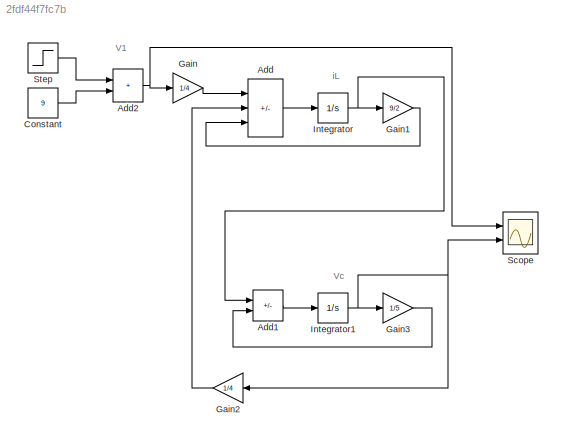
MODEL slx_2fdf44f7fc7b
KIND model
CONFIG AbsTol = auto
CONFIG EnableMultiTasking = off
CONFIG FixedStep = auto
CONFIG MaxStep = auto
CONFIG MinStep = auto
CONFIG RelTol = 1e-3
CONFIG SampleTimeConstraint = Unconstrained
CONFIG SolverName = VariableStepAuto
CONFIG StartTime = 0.0
CONFIG StopTime = 50
BLOCK [Sum] Add
  IconShape = rectangular
  Inputs = +--
  Ports = [3, 1]
BLOCK [Sum] Add1
  IconShape = rectangular
  Inputs = +-
  Ports = [2, 1]
BLOCK [Sum] Add2
  IconShape = rectangular
  Ports = [2, 1]
BLOCK [Constant] Constant
  Value = 9
BLOCK [Gain] Gain
  Gain = 1/4
BLOCK [Gain] Gain1
  Gain = 9/2
BLOCK [Gain] Gain2
  Gain = 1/4
  NameLocation = top
BLOCK [Gain] Gain3
  Gain = 1/5
BLOCK [Integrator] Integrator
  Ports = [1, 1]
BLOCK [Integrator] Integrator1
  Ports = [1, 1]
BLOCK [Scope] Scope
  Floating = off
  NumInputPorts = 2
  Ports = [2]
  ScopeSpecificationString = Simulink.scopes.TimeScopeBlockCfg('CurrentConfiguration', extmgr.ConfigurationSet(extmgr.Configuration('Core','General UI',true),extmgr.Configuration('Core','Source UI',true),extmgr.Configuration('Sources','WiredSimulink',true),extmgr.Configuration('Visuals','Time Domain',true,'SerializedDisplays',{struct('MinYLimReal','-1.25','MaxYLimReal','11.25','YLabelReal','','MinYLimMag','0.00000','MaxYLimMa...<+1364ch>
BLOCK [Step] Step
  SampleTime = 0
  Time = 5
ANNOTATION (root): V1
ANNOTATION (root): Vc
ANNOTATION (root): iL
LINE Add1:1 -> Integrator1:1
NET Add2:1 -> Gain:1, Scope:1
LINE Add:1 -> Integrator:1
LINE Constant:1 -> Add2:2
LINE Gain1:1 -> Add:3
LINE Gain2:1 -> Add:2
LINE Gain3:1 -> Add1:2
LINE Gain:1 -> Add:1
NET Integrator1:1 -> Gain2:1, Gain3:1, Scope:2
NET Integrator:1 -> Add1:1, Gain1:1
LINE Step:1 -> Add2:1
note: NET lines group one-source signal fan-out (src -> all destinations, sorted); 1:1 wires keep LINE
